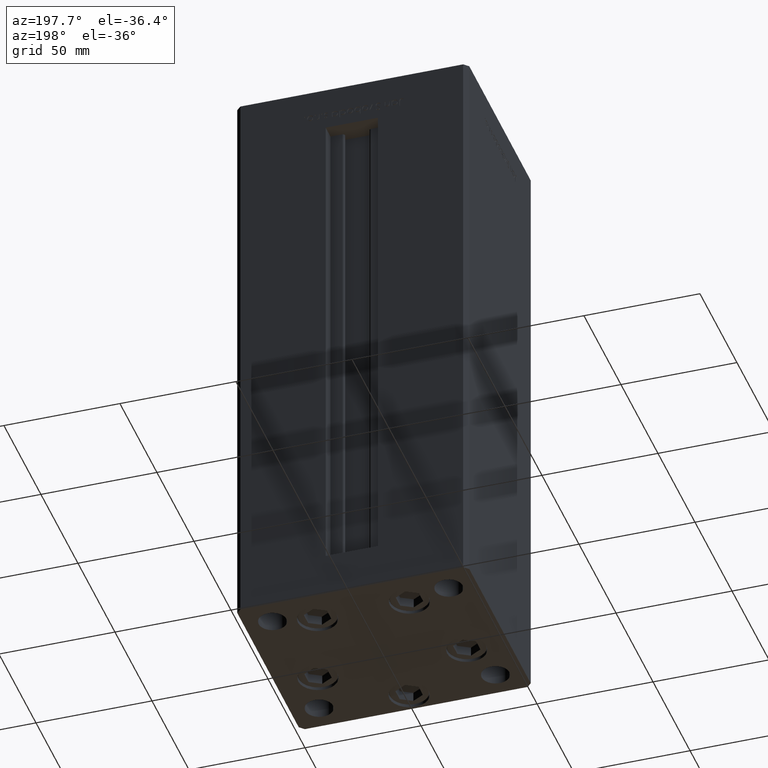
[diagram: clean part render]
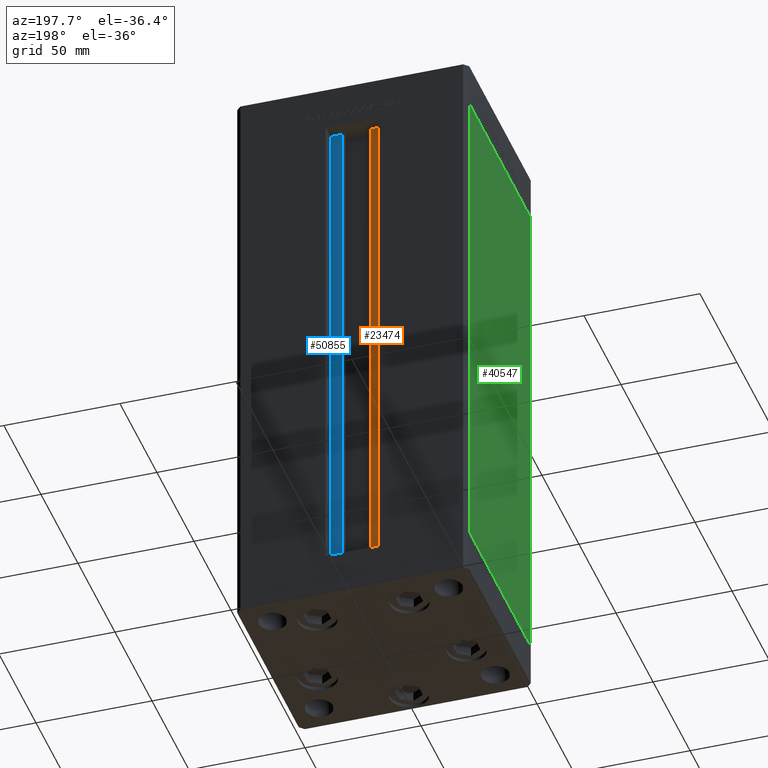
[diagram: same view with three faces highlighted in distinct colors, each labeled with its STEP entity id]
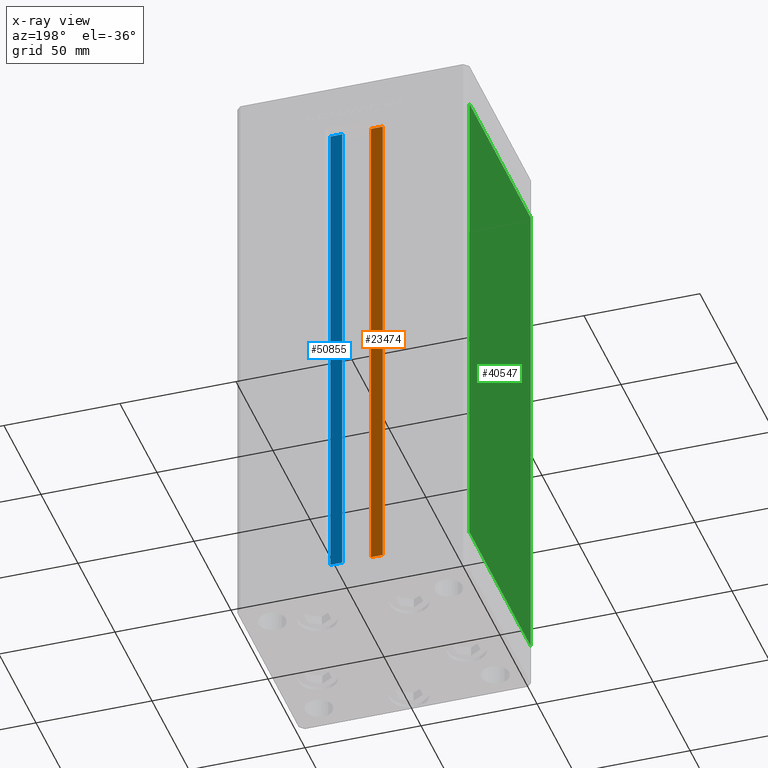
[diagram: x-ray of the same camera — body ghosted, the three highlighted faces saturated]
A machine part, auxiliary view with three faces highlighted in distinct colors.
The next image is the same camera in x-ray (body ghosted, the three faces saturated) — at least one of them is partly hidden behind the body in this view.
Their STEP definitions:

[orange] entity #23474 — the highlighted planar face has unit normal (0, -1, 0).
#33 = VERTEX_POINT ( 'NONE', #44943 ) ;
#674 = LINE ( 'NONE', #20735, #45499 ) ;
#1775 = CARTESIAN_POINT ( 'NONE',  ( 0.000000000000000000, 36.99999999999999289, 218.5000000000000000 ) ) ;
#2040 = DIRECTION ( 'NONE',  ( -1.000000000000000000, 0.000000000000000000, 0.000000000000000000 ) ) ;
#2101 = DIRECTION ( 'NONE',  ( 0.000000000000000000, 0.000000000000000000, -1.000000000000000000 ) ) ;
#2616 = EDGE_CURVE ( 'NONE', #33, #19650, #35500, .T. ) ;
#4282 = CARTESIAN_POINT ( 'NONE',  ( -6.183333333333997928, 36.99999999999999289, 0.000000000000000000 ) ) ;
#4500 = DIRECTION ( 'NONE',  ( -0.000000000000000000, -0.000000000000000000, 1.000000000000000000 ) ) ;
#5008 = CARTESIAN_POINT ( 'NONE',  ( -11.24999999999999822, 36.99999999999999289, 0.000000000000000000 ) ) ;
#8550 = ORIENTED_EDGE ( 'NONE', *, *, #15379, .F. ) ;
#9233 = PLANE ( 'NONE',  #40268 ) ;
#12168 = VERTEX_POINT ( 'NONE', #45873 ) ;
#13183 = CARTESIAN_POINT ( 'NONE',  ( -6.183333333333997928, 36.99999999999999289, 0.000000000000000000 ) ) ;
#15379 = EDGE_CURVE ( 'NONE', #19650, #22544, #674, .T. ) ;
#18450 = FACE_OUTER_BOUND ( 'NONE', #29152, .T. ) ;
#18508 = EDGE_CURVE ( 'NONE', #22544, #12168, #37911, .T. ) ;
#19650 = VERTEX_POINT ( 'NONE', #31258 ) ;
#20735 = CARTESIAN_POINT ( 'NONE',  ( -6.183333333333997928, 36.99999999999999289, 0.000000000000000000 ) ) ;
#21266 = DIRECTION ( 'NONE',  ( -0.000000000000000000, -0.000000000000000000, 1.000000000000000000 ) ) ;
#22165 = DIRECTION ( 'NONE',  ( 0.000000000000000000, -1.000000000000000000, -0.000000000000000000 ) ) ;
#22544 = VERTEX_POINT ( 'NONE', #32749 ) ;
#23474 = ADVANCED_FACE ( 'NONE', ( #18450 ), #9233, .F. ) ;
#24185 = ORIENTED_EDGE ( 'NONE', *, *, #51209, .T. ) ;
#28806 = DIRECTION ( 'NONE',  ( 1.000000000000000000, -0.000000000000000000, -0.000000000000000000 ) ) ;
#29152 = EDGE_LOOP ( 'NONE', ( #8550, #42143, #24185, #44151 ) ) ;
#31258 = CARTESIAN_POINT ( 'NONE',  ( -6.183333333333997928, 36.99999999999999289, 0.000000000000000000 ) ) ;
#32749 = CARTESIAN_POINT ( 'NONE',  ( -6.183333333333997928, 36.99999999999999289, 218.5000000000000000 ) ) ;
#35500 = LINE ( 'NONE', #4282, #52020 ) ;
#37911 = LINE ( 'NONE', #1775, #48960 ) ;
#40268 = AXIS2_PLACEMENT_3D ( 'NONE', #13183, #22165, #2101 ) ;
#40747 = VECTOR ( 'NONE', #4500, 1000.000000000000000 ) ;
#42143 = ORIENTED_EDGE ( 'NONE', *, *, #2616, .F. ) ;
#44151 = ORIENTED_EDGE ( 'NONE', *, *, #18508, .F. ) ;
#44943 = CARTESIAN_POINT ( 'NONE',  ( -11.24999999999999822, 36.99999999999999289, 0.000000000000000000 ) ) ;
#45499 = VECTOR ( 'NONE', #21266, 1000.000000000000000 ) ;
#45873 = CARTESIAN_POINT ( 'NONE',  ( -11.24999999999999822, 36.99999999999999289, 218.5000000000000000 ) ) ;
#48960 = VECTOR ( 'NONE', #2040, 1000.000000000000000 ) ;
#49309 = LINE ( 'NONE', #5008, #40747 ) ;
#51209 = EDGE_CURVE ( 'NONE', #33, #12168, #49309, .T. ) ;
#52020 = VECTOR ( 'NONE', #28806, 1000.000000000000000 ) ;

[blue] entity #50855 — the highlighted planar face has unit normal (0, -1, 0).
#1346 = VERTEX_POINT ( 'NONE', #15827 ) ;
#2058 = CARTESIAN_POINT ( 'NONE',  ( 0.000000000000000000, 36.99999999999999289, 218.5000000000000000 ) ) ;
#5602 = FACE_OUTER_BOUND ( 'NONE', #22182, .T. ) ;
#7276 = VERTEX_POINT ( 'NONE', #23153 ) ;
#9285 = VECTOR ( 'NONE', #37444, 1000.000000000000000 ) ;
#9492 = LINE ( 'NONE', #25840, #9285 ) ;
#9611 = CARTESIAN_POINT ( 'NONE',  ( 11.24999999999999822, 36.99999999999999289, 218.5000000000000000 ) ) ;
#13656 = DIRECTION ( 'NONE',  ( -0.000000000000000000, -0.000000000000000000, 1.000000000000000000 ) ) ;
#14117 = EDGE_CURVE ( 'NONE', #1346, #7276, #46086, .T. ) ;
#15612 = VECTOR ( 'NONE', #34923, 1000.000000000000000 ) ;
#15827 = CARTESIAN_POINT ( 'NONE',  ( 6.183333333333997928, 36.99999999999999289, 0.000000000000000000 ) ) ;
#17637 = VERTEX_POINT ( 'NONE', #44254 ) ;
#17988 = PLANE ( 'NONE',  #28145 ) ;
#18275 = ORIENTED_EDGE ( 'NONE', *, *, #34818, .F. ) ;
#21148 = VECTOR ( 'NONE', #42155, 1000.000000000000000 ) ;
#21324 = LINE ( 'NONE', #2058, #21148 ) ;
#22182 = EDGE_LOOP ( 'NONE', ( #22795, #18275, #28683, #50868 ) ) ;
#22795 = ORIENTED_EDGE ( 'NONE', *, *, #49873, .F. ) ;
#23153 = CARTESIAN_POINT ( 'NONE',  ( 6.183333333333997928, 36.99999999999999289, 218.5000000000000000 ) ) ;
#25840 = CARTESIAN_POINT ( 'NONE',  ( 6.183333333333997928, 36.99999999999999289, 0.000000000000000000 ) ) ;
#26433 = DIRECTION ( 'NONE',  ( 0.000000000000000000, -0.000000000000000000, -1.000000000000000000 ) ) ;
#26686 = CARTESIAN_POINT ( 'NONE',  ( 6.183333333333997928, 36.99999999999999289, 0.000000000000000000 ) ) ;
#28145 = AXIS2_PLACEMENT_3D ( 'NONE', #26686, #33549, #26433 ) ;
#28642 = VECTOR ( 'NONE', #13656, 1000.000000000000000 ) ;
#28683 = ORIENTED_EDGE ( 'NONE', *, *, #14117, .T. ) ;
#32811 = VERTEX_POINT ( 'NONE', #9611 ) ;
#33382 = EDGE_CURVE ( 'NONE', #32811, #7276, #21324, .T. ) ;
#33549 = DIRECTION ( 'NONE',  ( 0.000000000000000000, -1.000000000000000000, 0.000000000000000000 ) ) ;
#34818 = EDGE_CURVE ( 'NONE', #1346, #17637, #9492, .T. ) ;
#34923 = DIRECTION ( 'NONE',  ( -0.000000000000000000, -0.000000000000000000, 1.000000000000000000 ) ) ;
#37444 = DIRECTION ( 'NONE',  ( 1.000000000000000000, 0.000000000000000000, 0.000000000000000000 ) ) ;
#39131 = LINE ( 'NONE', #51538, #15612 ) ;
#42155 = DIRECTION ( 'NONE',  ( -1.000000000000000000, 0.000000000000000000, 0.000000000000000000 ) ) ;
#44254 = CARTESIAN_POINT ( 'NONE',  ( 11.24999999999999822, 36.99999999999999289, 0.000000000000000000 ) ) ;
#46086 = LINE ( 'NONE', #49785, #28642 ) ;
#49785 = CARTESIAN_POINT ( 'NONE',  ( 6.183333333333997928, 36.99999999999999289, 0.000000000000000000 ) ) ;
#49873 = EDGE_CURVE ( 'NONE', #17637, #32811, #39131, .T. ) ;
#50855 = ADVANCED_FACE ( 'NONE', ( #5602 ), #17988, .F. ) ;
#50868 = ORIENTED_EDGE ( 'NONE', *, *, #33382, .F. ) ;
#51538 = CARTESIAN_POINT ( 'NONE',  ( 11.24999999999999822, 36.99999999999999289, 0.000000000000000000 ) ) ;

[green] entity #40547 — the highlighted planar face has unit normal (1, 0, 0).
#1953 = CARTESIAN_POINT ( 'NONE',  ( -50.00000000000001421, 41.49999999999999289, 0.000000000000000000 ) ) ;
#2890 = CARTESIAN_POINT ( 'NONE',  ( -50.00000000000001421, 41.49999999999999289, 218.5000000000000000 ) ) ;
#4390 = AXIS2_PLACEMENT_3D ( 'NONE', #33329, #29648, #21738 ) ;
#4906 = ORIENTED_EDGE ( 'NONE', *, *, #14710, .F. ) ;
#5555 = EDGE_CURVE ( 'NONE', #24151, #27484, #11844, .T. ) ;
#5784 = ORIENTED_EDGE ( 'NONE', *, *, #45068, .F. ) ;
#7447 = VECTOR ( 'NONE', #47461, 1000.000000000000000 ) ;
#9609 = LINE ( 'NONE', #1953, #40346 ) ;
#10141 = DIRECTION ( 'NONE',  ( 3.344045254895050973E-16, -1.000000000000000000, 0.000000000000000000 ) ) ;
#10620 = CARTESIAN_POINT ( 'NONE',  ( -50.00000000000001421, 41.49999999999999289, 218.5000000000000000 ) ) ;
#11844 = LINE ( 'NONE', #2890, #7447 ) ;
#13645 = LINE ( 'NONE', #42391, #47475 ) ;
#14710 = EDGE_CURVE ( 'NONE', #24151, #40025, #34090, .T. ) ;
#14853 = CARTESIAN_POINT ( 'NONE',  ( -49.99999999999998579, -41.49999999999999289, 218.5000000000000000 ) ) ;
#21738 = DIRECTION ( 'NONE',  ( -3.344045254895050480E-16, 1.000000000000000000, 0.000000000000000000 ) ) ;
#24151 = VERTEX_POINT ( 'NONE', #36230 ) ;
#25162 = FACE_OUTER_BOUND ( 'NONE', #48505, .T. ) ;
#27156 = EDGE_CURVE ( 'NONE', #27484, #42842, #9609, .T. ) ;
#27484 = VERTEX_POINT ( 'NONE', #43996 ) ;
#27957 = ORIENTED_EDGE ( 'NONE', *, *, #5555, .T. ) ;
#28098 = ORIENTED_EDGE ( 'NONE', *, *, #27156, .T. ) ;
#29648 = DIRECTION ( 'NONE',  ( 1.000000000000000000, 3.344045254895050480E-16, -0.000000000000000000 ) ) ;
#29914 = PLANE ( 'NONE',  #4390 ) ;
#30140 = DIRECTION ( 'NONE',  ( 3.344045254895050973E-16, -1.000000000000000000, 0.000000000000000000 ) ) ;
#33329 = CARTESIAN_POINT ( 'NONE',  ( -50.00000000000001421, 41.49999999999999289, 218.5000000000000000 ) ) ;
#34090 = LINE ( 'NONE', #10620, #37028 ) ;
#36230 = CARTESIAN_POINT ( 'NONE',  ( -50.00000000000001421, 41.49999999999999289, 218.5000000000000000 ) ) ;
#37028 = VECTOR ( 'NONE', #30140, 1000.000000000000000 ) ;
#40025 = VERTEX_POINT ( 'NONE', #14853 ) ;
#40346 = VECTOR ( 'NONE', #10141, 1000.000000000000000 ) ;
#40547 = ADVANCED_FACE ( 'NONE', ( #25162 ), #29914, .F. ) ;
#42391 = CARTESIAN_POINT ( 'NONE',  ( -49.99999999999998579, -41.49999999999999289, 218.5000000000000000 ) ) ;
#42842 = VERTEX_POINT ( 'NONE', #45179 ) ;
#43996 = CARTESIAN_POINT ( 'NONE',  ( -50.00000000000001421, 41.49999999999999289, 0.000000000000000000 ) ) ;
#45068 = EDGE_CURVE ( 'NONE', #40025, #42842, #13645, .T. ) ;
#45179 = CARTESIAN_POINT ( 'NONE',  ( -49.99999999999998579, -41.49999999999999289, 0.000000000000000000 ) ) ;
#45551 = DIRECTION ( 'NONE',  ( -0.000000000000000000, -0.000000000000000000, -1.000000000000000000 ) ) ;
#47461 = DIRECTION ( 'NONE',  ( -0.000000000000000000, -0.000000000000000000, -1.000000000000000000 ) ) ;
#47475 = VECTOR ( 'NONE', #45551, 1000.000000000000000 ) ;
#48505 = EDGE_LOOP ( 'NONE', ( #28098, #5784, #4906, #27957 ) ) ;